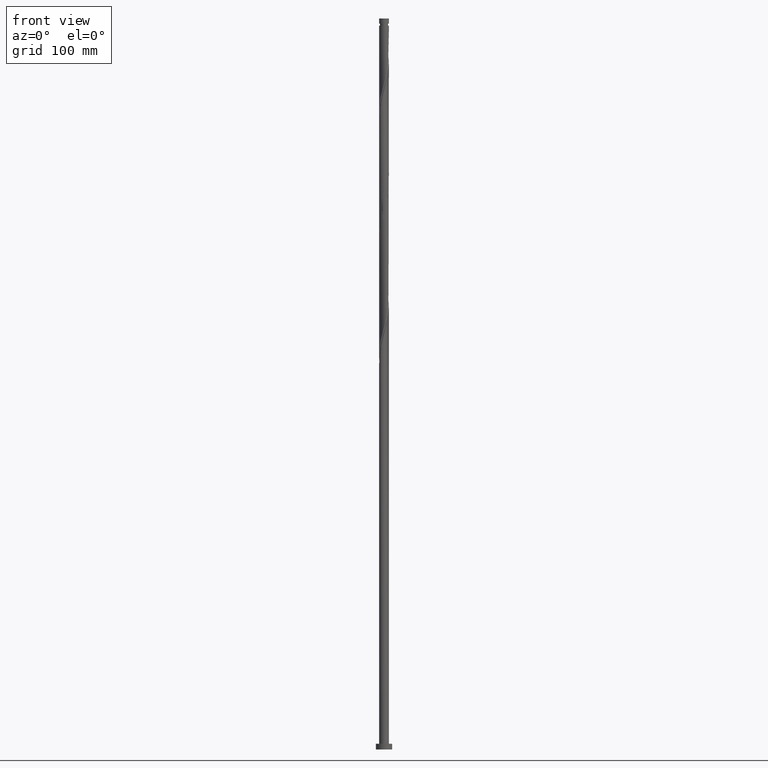
[diagram: clean part render]
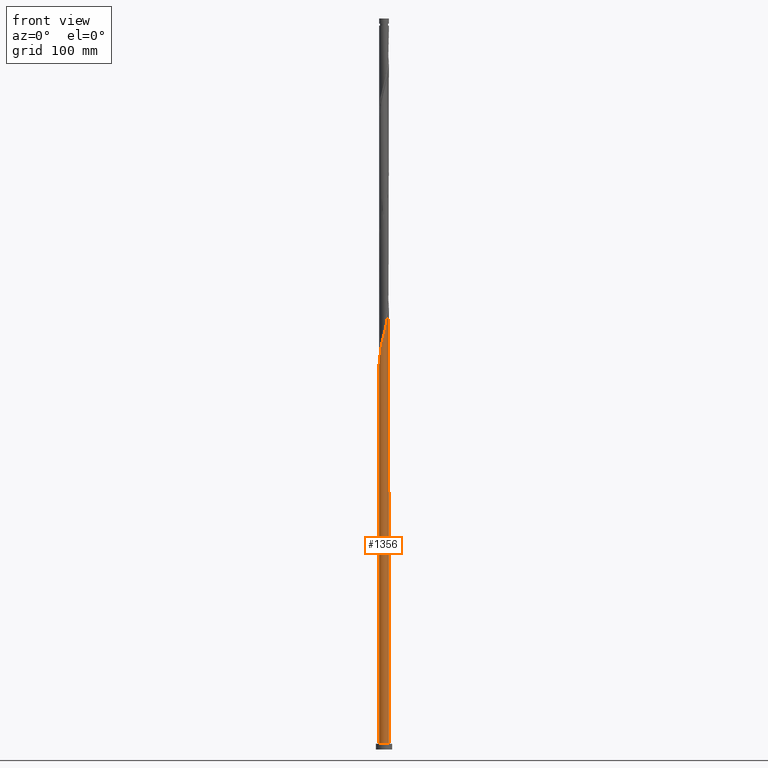
[diagram: same view with one face highlighted and labeled with its STEP entity id]
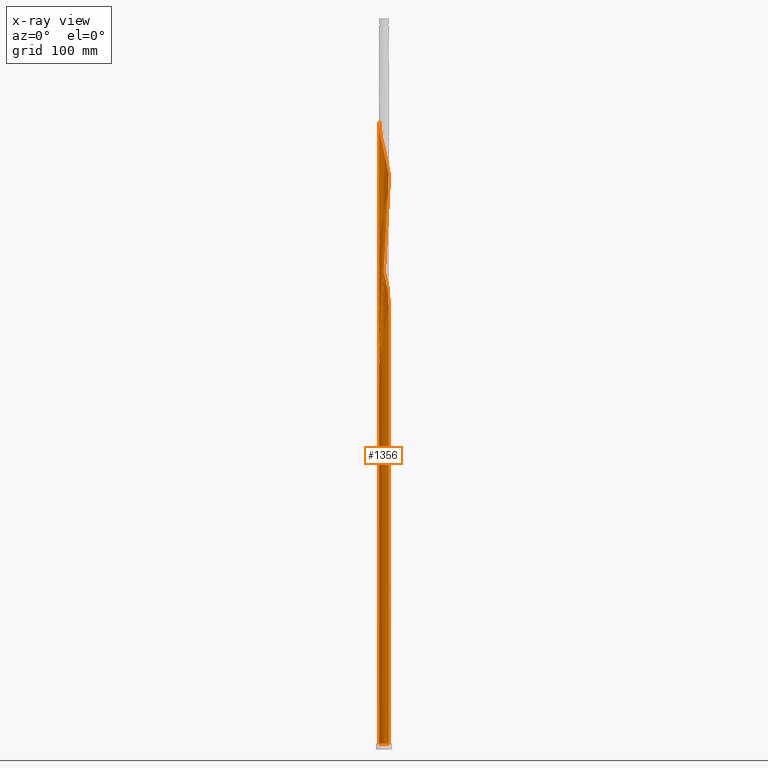
[diagram: x-ray of the same camera — body ghosted, the highlighted face saturated]
A machine part, front view. The second image highlights one B-rep face of the part: STEP entity #1356.
The next image is the same camera in x-ray: the body ghosted, the highlighted face saturated — about 0% of this face is hidden behind the body in this view.
In plain terms, the highlighted cylindrical surface (bore or boss wall) has radius 4.25 mm, axis along (-0, -0, -1).
Its self-contained STEP definition (entity closure, byte-faithful):
#12 = CARTESIAN_POINT ( 'NONE',  ( 3.955552457089538176, 1.603495975267486884, 495.6869153972914432 ) ) ;
#15 = DIRECTION ( 'NONE',  ( -0.000000000000000000, -0.000000000000000000, -1.000000000000000000 ) ) ;
#24 = ORIENTED_EDGE ( 'NONE', *, *, #242, .T. ) ;
#26 = CARTESIAN_POINT ( 'NONE',  ( -4.250000000000005329, 2.688973818135294627E-15, 541.7504713284796480 ) ) ;
#35 = CARTESIAN_POINT ( 'NONE',  ( -4.182843271983784028, 0.8493625524509889058, 335.0986801031737627 ) ) ;
#48 = CARTESIAN_POINT ( 'NONE',  ( 4.182843271983790245, 0.8493625524509884617, 492.5986801031738196 ) ) ;
#57 = CARTESIAN_POINT ( 'NONE',  ( -2.911652021918372579, 3.095929990044783420, 528.1133859855266337 ) ) ;
#75 = VECTOR ( 'NONE', #15, 1000.000000000000000 ) ;
#80 = CARTESIAN_POINT ( 'NONE',  ( -3.955552457089538176, -1.603495975267486218, 338.1869153972914432 ) ) ;
#91 = CARTESIAN_POINT ( 'NONE',  ( -1.104135504519245581, -4.122921218159054213, 353.6280918678796752 ) ) ;
#111 = CARTESIAN_POINT ( 'NONE',  ( 3.663370328795211073, -2.190276790177207555, 375.2457389267032113 ) ) ;
#121 = CARTESIAN_POINT ( 'NONE',  ( -4.069197864536661768, -1.226429263859236896, 441.6427977502324893 ) ) ;
#130 = CARTESIAN_POINT ( 'NONE',  ( 3.109193260358138922, 2.924125827188296167, 396.8633859855268042 ) ) ;
#142 = CARTESIAN_POINT ( 'NONE',  ( 4.105333563092925075, -1.099425457110571713, 484.8780918678796752 ) ) ;
#149 = CARTESIAN_POINT ( 'NONE',  ( 0.4597952349425802332, -4.243369289304221859, 464.8045624561150362 ) ) ;
#159 = CARTESIAN_POINT ( 'NONE',  ( 4.003456791465749731, -1.479840634106548203, 483.3339742208207781 ) ) ;
#170 = CARTESIAN_POINT ( 'NONE',  ( -1.842920285180761564, 3.849836283006762283, 319.6575036325855308 ) ) ;
#184 = CARTESIAN_POINT ( 'NONE',  ( -1.596655744125372811, 3.938678767651850432, 521.9369153972913864 ) ) ;
#188 = DIRECTION ( 'NONE',  ( 0.000000000000000000, 0.000000000000000000, 1.000000000000000000 ) ) ;
#195 = CARTESIAN_POINT ( 'NONE',  ( -4.003456791465750619, 1.479840634106547537, 535.8339742208208918 ) ) ;
#219 = CARTESIAN_POINT ( 'NONE',  ( -1.473527894850001463, 3.986378750582905361, 318.1133859855266337 ) ) ;
#239 = CARTESIAN_POINT ( 'NONE',  ( -4.237451355369139527, 0.3263525867528622171, 330.4663271619972420 ) ) ;
#241 = CARTESIAN_POINT ( 'NONE',  ( -2.518946625869706413, -3.445649790606370555, 347.4516212796444279 ) ) ;
#242 = EDGE_CURVE ( 'NONE', #357, #1753, #956, .T. ) ;
#267 = CARTESIAN_POINT ( 'NONE',  ( -2.624771860530774159, 3.365734282983718018, 316.5692683384679640 ) ) ;
#269 = CARTESIAN_POINT ( 'NONE',  ( 4.267692376018180411, 0.06630510660887474483, 384.5104448090559686 ) ) ;
#281 = CARTESIAN_POINT ( 'NONE',  ( 3.351376653894750035, 2.613575046507995214, 395.3192683384678503 ) ) ;
#287 = CARTESIAN_POINT ( 'NONE',  ( -0.7159431090175712997, -4.189263117142476567, 460.1722095149382881 ) ) ;
#299 = CARTESIAN_POINT ( 'NONE',  ( -4.267692376018179523, -0.06630510660887325991, 437.0104448090560822 ) ) ;
#307 = CARTESIAN_POINT ( 'NONE',  ( 1.104135504519244249, 4.122921218159054213, 406.1280918678796183 ) ) ;
#314 = CARTESIAN_POINT ( 'NONE',  ( 2.911652021918373912, -3.095929990044782976, 475.6133859855266905 ) ) ;
#323 = CARTESIAN_POINT ( 'NONE',  ( 2.814069943113922889, 3.184887808897333361, 503.4075036325854740 ) ) ;
#336 = CARTESIAN_POINT ( 'NONE',  ( 2.180933455525233544, 3.647743036806568195, 506.4957389267030976 ) ) ;
#349 = CARTESIAN_POINT ( 'NONE',  ( -3.833413560130478626, 1.835058712141877990, 534.2898565737617673 ) ) ;
#357 = VERTEX_POINT ( 'NONE', #1163 ) ;
#360 = CARTESIAN_POINT ( 'NONE',  ( 3.109193260358138922, 2.924125827188296167, 501.8633859855267474 ) ) ;
#362 = DIRECTION ( 'NONE',  ( 0.000000000000000000, 0.000000000000000000, 1.000000000000000000 ) ) ;
#373 = CARTESIAN_POINT ( 'NONE',  ( -2.814069943113918004, 3.184887808897328920, 324.2898565737618810 ) ) ;
#376 = DIRECTION ( 'NONE',  ( 1.000000000000000000, 0.000000000000000000, 0.000000000000000000 ) ) ;
#384 = DIRECTION ( 'NONE',  ( -0.000000000000000000, -0.000000000000000000, -1.000000000000000000 ) ) ;
#401 = CARTESIAN_POINT ( 'NONE',  ( -2.293199970321413872, 3.578230553795815894, 315.0251506914090669 ) ) ;
#403 = CARTESIAN_POINT ( 'NONE',  ( 1.231683408138688041, -4.086630710695787982, 362.8927977502326030 ) ) ;
#411 = CARTESIAN_POINT ( 'NONE',  ( -4.105333563092925075, 1.099425457110572601, 327.3780918678794478 ) ) ;
#414 = CARTESIAN_POINT ( 'NONE',  ( -3.351376653894750923, -2.613575046507994770, 342.8192683384678503 ) ) ;
#420 = CARTESIAN_POINT ( 'NONE',  ( 4.207210334720102196, -0.7190102801145981104, 381.4222095149384018 ) ) ;
#442 = CARTESIAN_POINT ( 'NONE',  ( -1.842920285180764450, -3.849836283006766724, 455.5398565737619947 ) ) ;
#450 = CARTESIAN_POINT ( 'NONE',  ( 3.663370328795211073, -2.190276790177207555, 480.2457389267032113 ) ) ;
#459 = CARTESIAN_POINT ( 'NONE',  ( -1.473527894850003683, -3.986378750582909802, 457.0839742208208349 ) ) ;
#466 = AXIS2_PLACEMENT_3D ( 'NONE', #1287, #384, #969 ) ;
#469 = CARTESIAN_POINT ( 'NONE',  ( -3.833413560130478626, 1.835058712141877990, 429.2898565737617673 ) ) ;
#480 = CARTESIAN_POINT ( 'NONE',  ( 2.518946625869704636, 3.445649790606371443, 399.9516212796443142 ) ) ;
#489 = CARTESIAN_POINT ( 'NONE',  ( -4.250000000000000000, 0.2295849306368787091, 337.5429696458550666 ) ) ;
#501 = CARTESIAN_POINT ( 'NONE',  ( 3.351376653894750035, 2.613575046507995214, 500.3192683384678503 ) ) ;
#512 = CARTESIAN_POINT ( 'NONE',  ( 0.7159431090175716328, 4.189263117142476567, 512.6722095149384586 ) ) ;
#514 = CARTESIAN_POINT ( 'NONE',  ( 0.8457393215406344700, 4.164999999999998259, 308.8486801031737059 ) ) ;
#520 = VERTEX_POINT ( 'NONE', #738 ) ;
#523 = CARTESIAN_POINT ( 'NONE',  ( -0.06602226071334184321, 4.249487152715058613, 515.7604448090561391 ) ) ;
#532 = CARTESIAN_POINT ( 'NONE',  ( -4.250000000000002665, 0.1634175485226704860, 541.1070655764198136 ) ) ;
#534 = CARTESIAN_POINT ( 'NONE',  ( -4.250000000000005329, 2.688973818135294627E-15, 541.7504713284796480 ) ) ;
#540 = VERTEX_POINT ( 'NONE', #1344 ) ;
#544 = CARTESIAN_POINT ( 'NONE',  ( 0.8457393215406331377, -4.165000000000004476, 361.3486801031737627 ) ) ;
#566 = CARTESIAN_POINT ( 'NONE',  ( -3.109193260358138922, -2.924125827188296611, 344.3633859855268042 ) ) ;
#579 = CARTESIAN_POINT ( 'NONE',  ( -1.842920285180764450, -3.849836283006766724, 350.5398565737620515 ) ) ;
#589 = CARTESIAN_POINT ( 'NONE',  ( 3.955552457089538176, 1.603495975267486884, 390.6869153972913864 ) ) ;
#600 = CARTESIAN_POINT ( 'NONE',  ( -4.237451355369139527, 0.3263525867528622171, 435.4663271619971852 ) ) ;
#609 = CARTESIAN_POINT ( 'NONE',  ( 2.624771860530773271, -3.365734282983718018, 474.0692683384679071 ) ) ;
#619 = CARTESIAN_POINT ( 'NONE',  ( 0.06602226071334056645, -4.249487152715059501, 463.2604448090560254 ) ) ;
#629 = CARTESIAN_POINT ( 'NONE',  ( -4.225267824000982664, -0.4578338295299310134, 438.5545624561148657 ) ) ;
#641 = CARTESIAN_POINT ( 'NONE',  ( 3.593560047431365589, 2.303024265827692485, 393.7751506914089532 ) ) ;
#650 = CARTESIAN_POINT ( 'NONE',  ( -0.7159431090175697454, 4.189263117142471238, 315.0251506914090669 ) ) ;
#653 = CARTESIAN_POINT ( 'NONE',  ( -4.250000000000000000, 0.000000000000000000, 630.0000000000000000 ) ) ;
#662 = CARTESIAN_POINT ( 'NONE',  ( -0.8457393215406325826, 4.165000000000004476, 518.8486801031737059 ) ) ;
#675 = CARTESIAN_POINT ( 'NONE',  ( 1.473527894850005682, 3.986378750582908026, 509.5839742208207781 ) ) ;
#678 = LINE ( 'NONE', #1297, #1637 ) ;
#685 = CARTESIAN_POINT ( 'NONE',  ( -3.663370328795210185, 2.190276790177208888, 532.7457389267032113 ) ) ;
#695 = CARTESIAN_POINT ( 'NONE',  ( -3.198532183305975884, 2.826125697105848378, 529.6575036325854171 ) ) ;
#707 = CARTESIAN_POINT ( 'NONE',  ( -4.069197864536661768, -1.226429263859236896, 336.6427977502324893 ) ) ;
#719 = CARTESIAN_POINT ( 'NONE',  ( -0.7159431090175712997, -4.189263117142476567, 355.1722095149384586 ) ) ;
#727 = CARTESIAN_POINT ( 'NONE',  ( 0.06602226071334056645, -4.249487152715059501, 358.2604448090560254 ) ) ;
#733 = CARTESIAN_POINT ( 'NONE',  ( -4.250000000000004441, -5.691661248386372838E-15, 331.7504713284797049 ) ) ;
#736 = CARTESIAN_POINT ( 'NONE',  ( -3.774556252260449885, -1.953260120547590128, 339.7310330443501130 ) ) ;
#738 = CARTESIAN_POINT ( 'NONE',  ( -4.250000000000000000, -5.766354965556833450E-15, 338.4468888778678206 ) ) ;
#739 = AXIS2_PLACEMENT_3D ( 'NONE', #825, #188, #376 ) ;
#748 = CARTESIAN_POINT ( 'NONE',  ( 4.225267824000982664, 0.4578338295299315686, 386.0545624561148657 ) ) ;
#757 = CARTESIAN_POINT ( 'NONE',  ( -2.293199970321413872, 3.578230553795815894, 420.0251506914090101 ) ) ;
#764 = CARTESIAN_POINT ( 'NONE',  ( 2.293199970321414760, -3.578230553795814117, 472.5251506914089532 ) ) ;
#773 = CARTESIAN_POINT ( 'NONE',  ( -3.198532183305975884, 2.826125697105848378, 424.6575036325854740 ) ) ;
#778 =( BOUNDED_CURVE ( )  B_SPLINE_CURVE ( 2, ( #1756, #489, #822, #35, #986, #1799, #1640, #1593, #976, #1113, #373, #1616, #1295, #170, #219, #797, #650, #1283, #1951, #1766, #1136 ),
 .UNSPECIFIED., .F., .T. ) 
 B_SPLINE_CURVE_WITH_KNOTS ( ( 3, 2, 2, 2, 2, 2, 2, 2, 2, 2, 3 ),
 ( 0.9295293573162904943, 0.9338235294117647189, 0.9411764705882352811, 0.9485294117647058432, 0.9558823529411765163, 0.9632352941176470784, 0.9705882352941176405, 0.9779411764705882026, 0.9852941176470588758, 0.9926470588235294379, 1.000000000000000000 ),
 .UNSPECIFIED. ) 
 CURVE ( )  GEOMETRIC_REPRESENTATION_ITEM ( )  RATIONAL_B_SPLINE_CURVE ( ( 0.9072066346053315744, 0.9068261157890986635, 0.9090909090909701229, 0.9052128875410010433, 0.9090909090909701229, 0.9052128875410010433, 0.9090909090909701229, 0.9052128875410010433, 0.9090909090909701229, 0.9052128875410010433, 0.9090909090909701229, 0.9052128875410010433, 0.9090909090909701229, 0.9052128875410010433, 0.9090909090909701229, 0.9052128875410010433, 0.9090909090909701229, 0.9052128875410010433, 0.9090909090909701229, 0.9052128875410010433, 0.9090909090909701229 ) ) 
 REPRESENTATION_ITEM ( '' )  );
#782 = CARTESIAN_POINT ( 'NONE',  ( -3.351376653894750923, -2.613575046507994770, 447.8192683384677935 ) ) ;
#789 = CARTESIAN_POINT ( 'NONE',  ( 4.207210334720102196, -0.7190102801145981104, 486.4222095149384018 ) ) ;
#797 = CARTESIAN_POINT ( 'NONE',  ( -1.104135504519242694, 4.122921218159047996, 316.5692683384679071 ) ) ;
#808 = CARTESIAN_POINT ( 'NONE',  ( 2.518946625869704636, 3.445649790606371443, 504.9516212796444279 ) ) ;
#812 = FACE_OUTER_BOUND ( 'NONE', #1579, .T. ) ;
#822 = CARTESIAN_POINT ( 'NONE',  ( -4.225267824000977335, 0.4578338295299316796, 336.6427977502325462 ) ) ;
#823 = AXIS2_PLACEMENT_3D ( 'NONE', #1374, #1068, #1711 ) ;
#825 = CARTESIAN_POINT ( 'NONE',  ( 0.000000000000000000, 0.000000000000000000, 5.000000000000000000 ) ) ;
#844 = CARTESIAN_POINT ( 'NONE',  ( 4.225267824000982664, 0.4578338295299315686, 491.0545624561148657 ) ) ;
#869 = CARTESIAN_POINT ( 'NONE',  ( -1.473527894850003683, -3.986378750582909802, 352.0839742208207781 ) ) ;
#877 = CARTESIAN_POINT ( 'NONE',  ( -4.250000000000004441, -5.691661248386372838E-15, 331.7504713284797049 ) ) ;
#893 = CARTESIAN_POINT ( 'NONE',  ( -1.231683408138687819, 4.086630710695787982, 310.3927977502326598 ) ) ;
#901 = AXIS2_PLACEMENT_3D ( 'NONE', #1138, #362, #988 ) ;
#908 = CARTESIAN_POINT ( 'NONE',  ( -0.06602226071334184321, 4.249487152715058613, 410.7604448090561391 ) ) ;
#917 = CARTESIAN_POINT ( 'NONE',  ( 1.596655744125372367, -3.938678767651850432, 469.4369153972913296 ) ) ;
#927 = CARTESIAN_POINT ( 'NONE',  ( -3.774556252260449885, -1.953260120547590128, 444.7310330443502266 ) ) ;
#940 = CARTESIAN_POINT ( 'NONE',  ( 3.774556252260450329, 1.953260120547589684, 392.2310330443501698 ) ) ;
#947 = CARTESIAN_POINT ( 'NONE',  ( 2.180933455525233544, 3.647743036806568195, 401.4957389267031544 ) ) ;
#955 = CARTESIAN_POINT ( 'NONE',  ( -1.231683408138687819, 4.086630710695787982, 520.3927977502324893 ) ) ;
#956 = CIRCLE ( 'NONE', #823, 4.250000000000000000 ) ;
#965 = CARTESIAN_POINT ( 'NONE',  ( 1.104135504519244249, 4.122921218159054213, 511.1280918678796752 ) ) ;
#969 = DIRECTION ( 'NONE',  ( -1.000000000000000000, 0.000000000000000000, 0.000000000000000000 ) ) ;
#976 = CARTESIAN_POINT ( 'NONE',  ( -3.351376653894746926, 2.613575046507991662, 327.3780918678795615 ) ) ;
#986 = CARTESIAN_POINT ( 'NONE',  ( -4.069197864536656439, 1.226429263859236451, 333.5545624561148657 ) ) ;
#988 = DIRECTION ( 'NONE',  ( 1.000000000000000000, 0.000000000000000000, 0.000000000000000000 ) ) ;
#995 = CARTESIAN_POINT ( 'NONE',  ( -4.207210334720102196, 0.7190102801145984435, 538.9222095149384586 ) ) ;
#1006 = CARTESIAN_POINT ( 'NONE',  ( -0.8457393215406329157, 4.165000000000004476, 308.8486801031737059 ) ) ;
#1013 = ORIENTED_EDGE ( 'NONE', *, *, #1420, .T. ) ;
#1018 = CARTESIAN_POINT ( 'NONE',  ( -4.250000000000005329, -0.2295849306368838993, 332.6543905604924589 ) ) ;
#1030 = CARTESIAN_POINT ( 'NONE',  ( 3.198532183305974108, -2.826125697105849266, 372.1575036325855876 ) ) ;
#1039 = CARTESIAN_POINT ( 'NONE',  ( 4.003456791465749731, -1.479840634106548203, 378.3339742208208349 ) ) ;
#1061 = CARTESIAN_POINT ( 'NONE',  ( 4.237451355369140416, -0.3263525867528634383, 382.9663271619971852 ) ) ;
#1068 = DIRECTION ( 'NONE',  ( 0.000000000000000000, -0.000000000000000000, -1.000000000000000000 ) ) ;
#1072 = CARTESIAN_POINT ( 'NONE',  ( -1.104135504519245581, -4.122921218159054213, 458.6280918678796752 ) ) ;
#1081 = CARTESIAN_POINT ( 'NONE',  ( -4.207210334720102196, 0.7190102801145984435, 433.9222095149384586 ) ) ;
#1090 = CARTESIAN_POINT ( 'NONE',  ( 4.267692376018180411, 0.06630510660887474483, 489.5104448090560822 ) ) ;
#1099 = CARTESIAN_POINT ( 'NONE',  ( -0.4597952349425797891, 4.243369289304221859, 412.3045624561150930 ) ) ;
#1106 = CARTESIAN_POINT ( 'NONE',  ( -4.003456791465750619, 1.479840634106547537, 430.8339742208208918 ) ) ;
#1113 = CARTESIAN_POINT ( 'NONE',  ( -3.109193260358134037, 2.924125827188293059, 325.8339742208208918 ) ) ;
#1136 = CARTESIAN_POINT ( 'NONE',  ( 0.8457393215406344700, 4.164999999999998259, 308.8486801031737059 ) ) ;
#1138 = CARTESIAN_POINT ( 'NONE',  ( 0.000000000000000000, 0.000000000000000000, 5.000000000000000000 ) ) ;
#1145 = ORIENTED_EDGE ( 'NONE', *, *, #1741, .F. ) ;
#1163 = CARTESIAN_POINT ( 'NONE',  ( -0.8457393215406329157, 4.165000000000004476, 308.8486801031737059 ) ) ;
#1180 = CARTESIAN_POINT ( 'NONE',  ( -3.663370328795210185, 2.190276790177208888, 322.7457389267032113 ) ) ;
#1188 = CARTESIAN_POINT ( 'NONE',  ( -1.596655744125372811, 3.938678767651850432, 311.9369153972913864 ) ) ;
#1196 =( BOUNDED_CURVE ( )  B_SPLINE_CURVE ( 2, ( #1006, #893, #1188, #2025, #401, #267, #1523, #1845, #1488, #1180, #1534, #1995, #411, #1812, #239, #1824, #733 ),
 .UNSPECIFIED., .F., .T. ) 
 B_SPLINE_CURVE_WITH_KNOTS ( ( 3, 2, 2, 2, 2, 2, 2, 2, 3 ),
 ( 0.000000000000000000, 0.007352941176470562112, 0.01470588235294112422, 0.02205882352941179736, 0.02941176470588235947, 0.03676470588235292158, 0.04411764705882348370, 0.05147058823529415683, 0.05452935731629059840 ),
 .UNSPECIFIED. ) 
 CURVE ( )  GEOMETRIC_REPRESENTATION_ITEM ( )  RATIONAL_B_SPLINE_CURVE ( ( 0.9090909090909755630, 0.9052128875410064834, 0.9090909090909755630, 0.9052128875410064834, 0.9090909090909755630, 0.9052128875410064834, 0.9090909090909755630, 0.9052128875410064834, 0.9090909090909755630, 0.9052128875410064834, 0.9090909090909755630, 0.9052128875410064834, 0.9090909090909755630, 0.9052128875410064834, 0.9090909090909755630, 0.9074776808428778319, 0.9072066346053371255 ) ) 
 REPRESENTATION_ITEM ( '' )  );
#1205 = CARTESIAN_POINT ( 'NONE',  ( -0.3277507135158987950, -4.255605016125899809, 356.7163271619971852 ) ) ;
#1214 = CARTESIAN_POINT ( 'NONE',  ( 2.911652021918373912, -3.095929990044782976, 370.6133859855265769 ) ) ;
#1223 = CARTESIAN_POINT ( 'NONE',  ( -2.180933455525235320, -3.647743036806567307, 453.9957389267031544 ) ) ;
#1233 = CARTESIAN_POINT ( 'NONE',  ( 3.430951256050591702, -2.508201243641528411, 478.7016212796443142 ) ) ;
#1240 = CARTESIAN_POINT ( 'NONE',  ( -3.593560047431365589, -2.303024265827692929, 446.2751506914090101 ) ) ;
#1250 = CARTESIAN_POINT ( 'NONE',  ( -2.624771860530774159, 3.365734282983718018, 421.5692683384678503 ) ) ;
#1263 = CARTESIAN_POINT ( 'NONE',  ( -0.8457393215406325826, 4.165000000000004476, 413.8486801031737059 ) ) ;
#1273 = CARTESIAN_POINT ( 'NONE',  ( -1.961628080112058470, 3.790726824607912882, 523.4810330443502835 ) ) ;
#1281 = ORIENTED_EDGE ( 'NONE', *, *, #1779, .T. ) ;
#1283 = CARTESIAN_POINT ( 'NONE',  ( -0.3277507135158968521, 4.255605016125894480, 313.4810330443502266 ) ) ;
#1287 = CARTESIAN_POINT ( 'NONE',  ( 0.000000000000000000, 0.000000000000000000, 630.0000000000000000 ) ) ;
#1295 = CARTESIAN_POINT ( 'NONE',  ( -2.180933455525231324, 3.647743036806563754, 321.2016212796443142 ) ) ;
#1297 = CARTESIAN_POINT ( 'NONE',  ( -4.250000000000000000, 0.000000000000000000, 630.0000000000000000 ) ) ;
#1304 = CARTESIAN_POINT ( 'NONE',  ( 1.842920285180764450, 3.849836283006765836, 508.0398565737619379 ) ) ;
#1314 = CARTESIAN_POINT ( 'NONE',  ( -2.293199970321413872, 3.578230553795815894, 525.0251506914089532 ) ) ;
#1329 = CARTESIAN_POINT ( 'NONE',  ( 1.961628080112058470, -3.790726824607912882, 365.9810330443502835 ) ) ;
#1337 = ORIENTED_EDGE ( 'NONE', *, *, #1741, .T. ) ;
#1342 = CARTESIAN_POINT ( 'NONE',  ( 2.293199970321414760, -3.578230553795814117, 367.5251506914090669 ) ) ;
#1344 = CARTESIAN_POINT ( 'NONE',  ( -4.250000000000004441, -5.691661248386372838E-15, 331.7504713284797049 ) ) ;
#1349 = CARTESIAN_POINT ( 'NONE',  ( 3.430951256050591702, -2.508201243641528411, 373.7016212796443142 ) ) ;
#1356 = ADVANCED_FACE ( 'NONE', ( #812 ), #1963, .T. ) ;
#1359 = CARTESIAN_POINT ( 'NONE',  ( -3.593560047431365589, -2.303024265827692929, 341.2751506914090101 ) ) ;
#1367 = CARTESIAN_POINT ( 'NONE',  ( 4.069197864536661768, 1.226429263859235785, 389.1427977502326030 ) ) ;
#1374 = CARTESIAN_POINT ( 'NONE',  ( 0.000000000000000000, 0.000000000000000000, 308.8486801031737059 ) ) ;
#1378 = CARTESIAN_POINT ( 'NONE',  ( -1.961628080112058470, 3.790726824607912882, 418.4810330443502266 ) ) ;
#1388 = CARTESIAN_POINT ( 'NONE',  ( 0.7159431090175716328, 4.189263117142476567, 407.6722095149383449 ) ) ;
#1399 = CARTESIAN_POINT ( 'NONE',  ( -0.3277507135158987950, -4.255605016125899809, 461.7163271619972988 ) ) ;
#1408 = CARTESIAN_POINT ( 'NONE',  ( 0.8457393215406331377, -4.165000000000004476, 466.3486801031737059 ) ) ;
#1419 = CARTESIAN_POINT ( 'NONE',  ( -3.430951256050591702, 2.508201243641528411, 426.2016212796441437 ) ) ;
#1420 = EDGE_CURVE ( 'NONE', #1958, #1797, #1634, .T. ) ;
#1428 = VERTEX_POINT ( 'NONE', #534 ) ;
#1440 = CARTESIAN_POINT ( 'NONE',  ( -2.624771860530774159, 3.365734282983718018, 526.5692683384679640 ) ) ;
#1455 = CARTESIAN_POINT ( 'NONE',  ( -4.250000000000000000, 0.000000000000000000, 5.000000000000000000 ) ) ;
#1476 = CARTESIAN_POINT ( 'NONE',  ( 3.593560047431365589, 2.303024265827692485, 498.7751506914090669 ) ) ;
#1488 = CARTESIAN_POINT ( 'NONE',  ( -3.430951256050591702, 2.508201243641528411, 321.2016212796443142 ) ) ;
#1491 = CARTESIAN_POINT ( 'NONE',  ( 2.624771860530773271, -3.365734282983718018, 369.0692683384679071 ) ) ;
#1503 = CIRCLE ( 'NONE', #901, 4.250000000000000000 ) ;
#1505 = CARTESIAN_POINT ( 'NONE',  ( 0.4597952349425802332, -4.243369289304221859, 359.8045624561149793 ) ) ;
#1523 = CARTESIAN_POINT ( 'NONE',  ( -2.911652021918372579, 3.095929990044783420, 318.1133859855266337 ) ) ;
#1534 = CARTESIAN_POINT ( 'NONE',  ( -3.833413560130478626, 1.835058712141877990, 324.2898565737618810 ) ) ;
#1536 = CARTESIAN_POINT ( 'NONE',  ( -2.814069943113922445, -3.184887808897333361, 345.9075036325853603 ) ) ;
#1545 = CARTESIAN_POINT ( 'NONE',  ( -3.955552457089538176, -1.603495975267486218, 443.1869153972913296 ) ) ;
#1553 = CARTESIAN_POINT ( 'NONE',  ( 1.961628080112058470, -3.790726824607912882, 470.9810330443501130 ) ) ;
#1564 = CARTESIAN_POINT ( 'NONE',  ( 1.231683408138688041, -4.086630710695787982, 467.8927977502326030 ) ) ;
#1571 = CARTESIAN_POINT ( 'NONE',  ( -2.911652021918372579, 3.095929990044783420, 423.1133859855266905 ) ) ;
#1576 = ORIENTED_EDGE ( 'NONE', *, *, #1900, .F. ) ;
#1579 = EDGE_LOOP ( 'NONE', ( #1776, #1576, #1337, #1013, #1281, #1145, #1586, #24, #1590 ) ) ;
#1582 = CARTESIAN_POINT ( 'NONE',  ( -3.663370328795210185, 2.190276790177208888, 427.7457389267031544 ) ) ;
#1586 = ORIENTED_EDGE ( 'NONE', *, *, #2052, .F. ) ;
#1590 = ORIENTED_EDGE ( 'NONE', *, *, #1975, .F. ) ;
#1593 = CARTESIAN_POINT ( 'NONE',  ( -3.593560047431360260, 2.303024265827692041, 328.9222095149385154 ) ) ;
#1605 = CARTESIAN_POINT ( 'NONE',  ( -0.4597952349425797891, 4.243369289304221859, 517.3045624561150362 ) ) ;
#1616 = CARTESIAN_POINT ( 'NONE',  ( -2.518946625869703304, 3.445649790606366114, 322.7457389267031544 ) ) ;
#1626 = CARTESIAN_POINT ( 'NONE',  ( 0.3277507135158994611, 4.255605016125899809, 514.2163271619972420 ) ) ;
#1634 = CIRCLE ( 'NONE', #739, 4.250000000000000000 ) ;
#1637 = VECTOR ( 'NONE', #1954, 1000.000000000000000 ) ;
#1640 = CARTESIAN_POINT ( 'NONE',  ( -3.774556252260445444, 1.953260120547587686, 330.4663271619971852 ) ) ;
#1660 = EDGE_CURVE ( 'NONE', #1428, #520, #1782, .T. ) ;
#1663 = CARTESIAN_POINT ( 'NONE',  ( -4.182843271983790245, -0.8493625524509891278, 335.0986801031737627 ) ) ;
#1685 = CARTESIAN_POINT ( 'NONE',  ( 4.105333563092925075, -1.099425457110571713, 379.8780918678796183 ) ) ;
#1704 = CARTESIAN_POINT ( 'NONE',  ( -2.180933455525235320, -3.647743036806567307, 348.9957389267031544 ) ) ;
#1711 = DIRECTION ( 'NONE',  ( -1.000000000000000000, 0.000000000000000000, 0.000000000000000000 ) ) ;
#1717 =( BOUNDED_CURVE ( )  B_SPLINE_CURVE ( 2, ( #877, #1018, #2027, #1663, #707, #80, #736, #1359, #414, #566, #1536, #241, #1704, #579, #869, #91, #719, #1205, #727, #1505, #544, #403, #1850, #1329, #1342, #1491, #1214, #1030, #1349, #111, #1859, #1039, #1685, #420, #1061, #269, #748, #1983, #1367, #589, #940, #641, #281, #130, #1719, #480, #947, #1729, #1881, #307, #1388, #1922, #908, #1099, #1263, #1888, #1899, #1378, #757, #1250, #1571, #773, #1419, #1582, #469, #1106, #2044, #1081, #600, #299, #629, #2071, #121, #1545, #927, #1240, #782, #1909, #2036, #1746, #1223, #442, #459, #1072, #287, #1399, #619, #149, #1408, #1564, #917, #1553, #764, #609, #314, #1736, #1233, #450, #2065, #159, #142, #789, #2054, #1090, #844, #48, #1789, #12, #1778, #1476, #501, #360, #323, #808, #336, #1304, #675, #965, #512, #1626, #523, #1605, #662, #955, #184, #1273, #1314, #1440, #57, #695, #1931, #685, #349, #195, #1970, #995, #1960, #532, #26 ),
 .UNSPECIFIED., .F., .T. ) 
 B_SPLINE_CURVE_WITH_KNOTS ( ( 3, 2, 2, 2, 2, 2, 2, 2, 2, 2, 2, 2, 2, 2, 2, 2, 2, 2, 2, 2, 2, 2, 2, 2, 2, 2, 2, 2, 2, 2, 2, 2, 2, 2, 2, 2, 2, 2, 2, 2, 2, 2, 2, 2, 2, 2, 2, 2, 2, 2, 2, 2, 2, 2, 2, 2, 2, 2, 2, 2, 2, 2, 2, 2, 2, 2, 2, 2, 2, 3 ),
 ( 0.05452935731629059840, 0.05882352941176471894, 0.06617647058823528106, 0.07352941176470584317, 0.08088235294117651630, 0.08823529411764707842, 0.09558823529411764053, 0.1029411764705882026, 0.1102941176470588758, 0.1176470588235294379, 0.1250000000000000000, 0.1323529411764705621, 0.1397058823529411242, 0.1470588235294117974, 0.1544117647058823595, 0.1617647058823529216, 0.1691176470588234837, 0.1764705882352941568, 0.1838235294117647189, 0.1911764705882352811, 0.1985294117647058432, 0.2058823529411765163, 0.2132352941176470784, 0.2205882352941176405, 0.2279411764705882026, 0.2352941176470588758, 0.2426470588235294379, 0.2500000000000000000, 0.2573529411764705621, 0.2647058823529411242, 0.2720588235294117974, 0.2794117647058823595, 0.2867647058823529216, 0.2941176470588234837, 0.3014705882352941568, 0.3088235294117647189, 0.3161764705882352811, 0.3235294117647058432, 0.3308823529411765163, 0.3382352941176470784, 0.3455882352941176405, 0.3529411764705882026, 0.3602941176470588758, 0.3676470588235294379, 0.3750000000000000000, 0.3823529411764705621, 0.3897058823529411242, 0.3970588235294117974, 0.4044117647058823595, 0.4117647058823529216, 0.4191176470588234837, 0.4264705882352941568, 0.4338235294117647189, 0.4411764705882352811, 0.4485294117647058432, 0.4558823529411765163, 0.4632352941176470784, 0.4705882352941176405, 0.4779411764705882026, 0.4852941176470588758, 0.4926470588235294379, 0.5000000000000000000, 0.5073529411764705621, 0.5147058823529411242, 0.5220588235294116863, 0.5294117647058823595, 0.5367647058823529216, 0.5441176470588235947, 0.5514705882352941568, 0.5545293573162900502 ),
 .UNSPECIFIED. ) 
 CURVE ( )  GEOMETRIC_REPRESENTATION_ITEM ( )  RATIONAL_B_SPLINE_CURVE ( ( 0.9072066346053371255, 0.9068261157891042146, 0.9090909090909755630, 0.9052128875410064834, 0.9090909090909755630, 0.9052128875410064834, 0.9090909090909755630, 0.9052128875410064834, 0.9090909090909755630, 0.9052128875410064834, 0.9090909090909755630, 0.9052128875410064834, 0.9090909090909755630, 0.9052128875410064834, 0.9090909090909755630, 0.9052128875410064834, 0.9090909090909755630, 0.9052128875410064834, 0.9090909090909755630, 0.9052128875410064834, 0.9090909090909755630, 0.9052128875410064834, 0.9090909090909755630, 0.9052128875410064834, 0.9090909090909755630, 0.9052128875410064834, 0.9090909090909755630, 0.9052128875410064834, 0.9090909090909755630, 0.9052128875410064834, 0.9090909090909755630, 0.9052128875410064834, 0.9090909090909755630, 0.9052128875410064834, 0.9090909090909755630, 0.9052128875410064834, 0.9090909090909755630, 0.9052128875410064834, 0.9090909090909755630, 0.9052128875410064834, 0.9090909090909755630, 0.9052128875410064834, 0.9090909090909755630, 0.9052128875410064834, 0.9090909090909755630, 0.9052128875410064834, 0.9090909090909755630, 0.9052128875410064834, 0.9090909090909755630, 0.9052128875410064834, 0.9090909090909755630, 0.9052128875410064834, 0.9090909090909755630, 0.9052128875410064834, 0.9090909090909755630, 0.9052128875410064834, 0.9090909090909755630, 0.9052128875410064834, 0.9090909090909755630, 0.9052128875410064834, 0.9090909090909755630, 0.9052128875410064834, 0.9090909090909755630, 0.9052128875410064834, 0.9090909090909755630, 0.9052128875410064834, 0.9090909090909755630, 0.9052128875410064834, 0.9090909090909755630, 0.9052128875410064834, 0.9090909090909755630, 0.9052128875410064834, 0.9090909090909755630, 0.9052128875410064834, 0.9090909090909755630, 0.9052128875410064834, 0.9090909090909755630, 0.9052128875410064834, 0.9090909090909755630, 0.9052128875410064834, 0.9090909090909755630, 0.9052128875410064834, 0.9090909090909755630, 0.9052128875410064834, 0.9090909090909755630, 0.9052128875410064834, 0.9090909090909755630, 0.9052128875410064834, 0.9090909090909755630, 0.9052128875410064834, 0.9090909090909755630, 0.9052128875410064834, 0.9090909090909755630, 0.9052128875410064834, 0.9090909090909755630, 0.9052128875410064834, 0.9090909090909755630, 0.9052128875410064834, 0.9090909090909755630, 0.9052128875410064834, 0.9090909090909755630, 0.9052128875410064834, 0.9090909090909755630, 0.9052128875410064834, 0.9090909090909755630, 0.9052128875410064834, 0.9090909090909755630, 0.9052128875410064834, 0.9090909090909755630, 0.9052128875410064834, 0.9090909090909755630, 0.9052128875410064834, 0.9090909090909755630, 0.9052128875410064834, 0.9090909090909755630, 0.9052128875410064834, 0.9090909090909755630, 0.9052128875410064834, 0.9090909090909755630, 0.9052128875410064834, 0.9090909090909755630, 0.9052128875410064834, 0.9090909090909755630, 0.9052128875410064834, 0.9090909090909755630, 0.9052128875410064834, 0.9090909090909755630, 0.9052128875410064834, 0.9090909090909755630, 0.9052128875410064834, 0.9090909090909755630, 0.9052128875410064834, 0.9090909090909755630, 0.9052128875410064834, 0.9090909090909755630, 0.9052128875410064834, 0.9090909090909755630, 0.9074776808428781649, 0.9072066346053371255 ) ) 
 REPRESENTATION_ITEM ( '' )  );
#1719 = CARTESIAN_POINT ( 'NONE',  ( 2.814069943113922889, 3.184887808897333361, 398.4075036325854171 ) ) ;
#1729 = CARTESIAN_POINT ( 'NONE',  ( 1.842920285180764450, 3.849836283006765836, 403.0398565737620515 ) ) ;
#1736 = CARTESIAN_POINT ( 'NONE',  ( 3.198532183305974108, -2.826125697105849266, 477.1575036325855308 ) ) ;
#1741 = EDGE_CURVE ( 'NONE', #540, #1958, #678, .T. ) ;
#1746 = CARTESIAN_POINT ( 'NONE',  ( -2.518946625869706413, -3.445649790606370555, 452.4516212796443710 ) ) ;
#1753 = VERTEX_POINT ( 'NONE', #514 ) ;
#1756 = CARTESIAN_POINT ( 'NONE',  ( -4.250000000000000000, -5.766354965556833450E-15, 338.4468888778678206 ) ) ;
#1766 = CARTESIAN_POINT ( 'NONE',  ( 0.4597952349425794560, 4.243369289304214753, 310.3927977502325462 ) ) ;
#1776 = ORIENTED_EDGE ( 'NONE', *, *, #1660, .F. ) ;
#1778 = CARTESIAN_POINT ( 'NONE',  ( 3.774556252260450329, 1.953260120547589684, 497.2310330443501698 ) ) ;
#1779 = EDGE_CURVE ( 'NONE', #1797, #1958, #1503, .T. ) ;
#1782 = LINE ( 'NONE', #653, #75 ) ;
#1789 = CARTESIAN_POINT ( 'NONE',  ( 4.069197864536661768, 1.226429263859235785, 494.1427977502324893 ) ) ;
#1797 = VERTEX_POINT ( 'NONE', #1997 ) ;
#1799 = CARTESIAN_POINT ( 'NONE',  ( -3.955552457089534180, 1.603495975267484663, 332.0104448090561391 ) ) ;
#1812 = CARTESIAN_POINT ( 'NONE',  ( -4.207210334720102196, 0.7190102801145984435, 328.9222095149383449 ) ) ;
#1824 = CARTESIAN_POINT ( 'NONE',  ( -4.250000000000006217, 0.1634175485226412594, 331.1070655764199842 ) ) ;
#1845 = CARTESIAN_POINT ( 'NONE',  ( -3.198532183305975884, 2.826125697105848378, 319.6575036325855308 ) ) ;
#1850 = CARTESIAN_POINT ( 'NONE',  ( 1.596655744125372367, -3.938678767651850432, 364.4369153972912727 ) ) ;
#1859 = CARTESIAN_POINT ( 'NONE',  ( 3.833413560130478182, -1.835058712141878434, 376.7898565737619379 ) ) ;
#1881 = CARTESIAN_POINT ( 'NONE',  ( 1.473527894850005682, 3.986378750582908026, 404.5839742208207781 ) ) ;
#1888 = CARTESIAN_POINT ( 'NONE',  ( -1.231683408138687819, 4.086630710695787982, 415.3927977502326598 ) ) ;
#1899 = CARTESIAN_POINT ( 'NONE',  ( -1.596655744125372811, 3.938678767651850432, 416.9369153972913864 ) ) ;
#1900 = EDGE_CURVE ( 'NONE', #540, #1428, #1717, .T. ) ;
#1909 = CARTESIAN_POINT ( 'NONE',  ( -3.109193260358138922, -2.924125827188296611, 449.3633859855267474 ) ) ;
#1922 = CARTESIAN_POINT ( 'NONE',  ( 0.3277507135158994611, 4.255605016125899809, 409.2163271619974125 ) ) ;
#1931 = CARTESIAN_POINT ( 'NONE',  ( -3.430951256050591702, 2.508201243641528411, 531.2016212796442005 ) ) ;
#1951 = CARTESIAN_POINT ( 'NONE',  ( 0.06602226071334113544, 4.249487152715055061, 311.9369153972913864 ) ) ;
#1954 = DIRECTION ( 'NONE',  ( -0.000000000000000000, -0.000000000000000000, -1.000000000000000000 ) ) ;
#1958 = VERTEX_POINT ( 'NONE', #1455 ) ;
#1960 = CARTESIAN_POINT ( 'NONE',  ( -4.237451355369139527, 0.3263525867528622171, 540.4663271619972420 ) ) ;
#1963 = CYLINDRICAL_SURFACE ( 'NONE', #466, 4.250000000000000000 ) ;
#1970 = CARTESIAN_POINT ( 'NONE',  ( -4.105333563092925075, 1.099425457110572601, 537.3780918678795615 ) ) ;
#1975 = EDGE_CURVE ( 'NONE', #520, #1753, #778, .T. ) ;
#1983 = CARTESIAN_POINT ( 'NONE',  ( 4.182843271983790245, 0.8493625524509884617, 387.5986801031738764 ) ) ;
#1995 = CARTESIAN_POINT ( 'NONE',  ( -4.003456791465750619, 1.479840634106547537, 325.8339742208209486 ) ) ;
#1997 = CARTESIAN_POINT ( 'NONE',  ( 4.250000000000000000, 0.000000000000000000, 5.000000000000000000 ) ) ;
#2025 = CARTESIAN_POINT ( 'NONE',  ( -1.961628080112058470, 3.790726824607912882, 313.4810330443502266 ) ) ;
#2027 = CARTESIAN_POINT ( 'NONE',  ( -4.225267824000982664, -0.4578338295299310134, 333.5545624561148088 ) ) ;
#2036 = CARTESIAN_POINT ( 'NONE',  ( -2.814069943113922445, -3.184887808897333361, 450.9075036325854740 ) ) ;
#2044 = CARTESIAN_POINT ( 'NONE',  ( -4.105333563092925075, 1.099425457110572601, 432.3780918678795615 ) ) ;
#2052 = EDGE_CURVE ( 'NONE', #357, #540, #1196, .T. ) ;
#2054 = CARTESIAN_POINT ( 'NONE',  ( 4.237451355369140416, -0.3263525867528634383, 487.9663271619971852 ) ) ;
#2065 = CARTESIAN_POINT ( 'NONE',  ( 3.833413560130478182, -1.835058712141878434, 481.7898565737619947 ) ) ;
#2071 = CARTESIAN_POINT ( 'NONE',  ( -4.182843271983790245, -0.8493625524509891278, 440.0986801031738764 ) ) ;